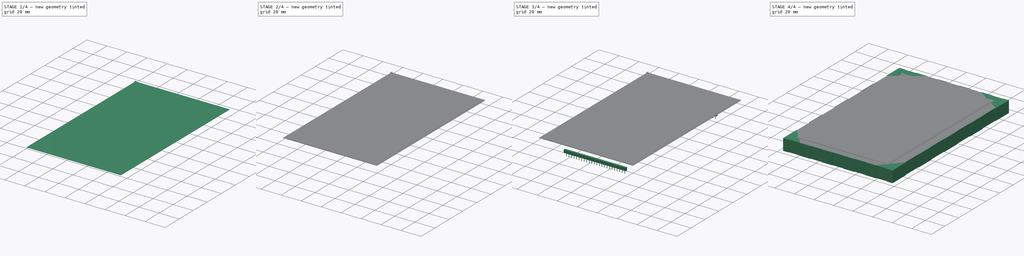
[diagram: build sequence overview — one tinted view per stage of 4, left to right]
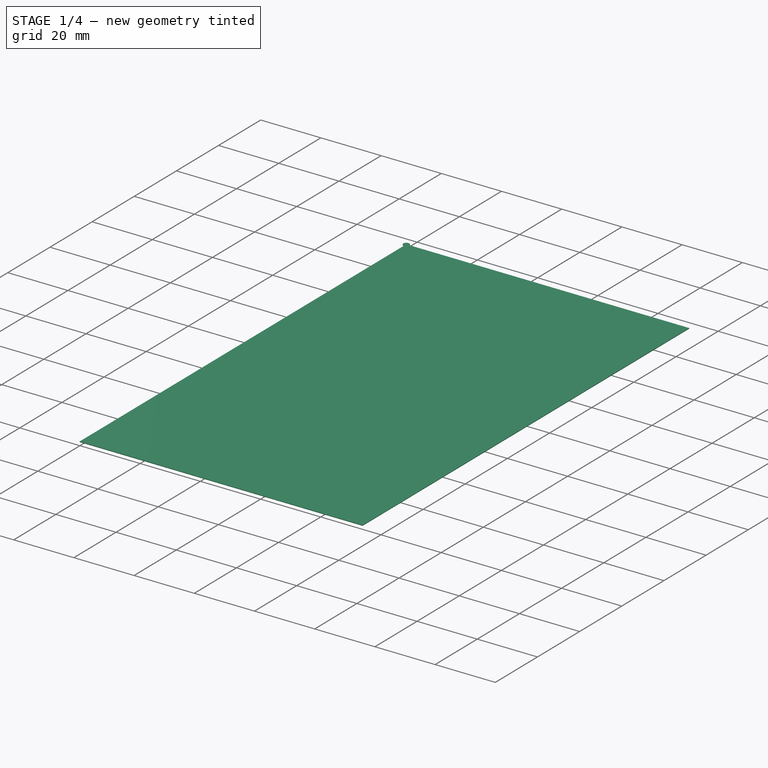
[diagram: stage 1 of 4 — iso view after this stage's code; geometry added in this stage tinted green]
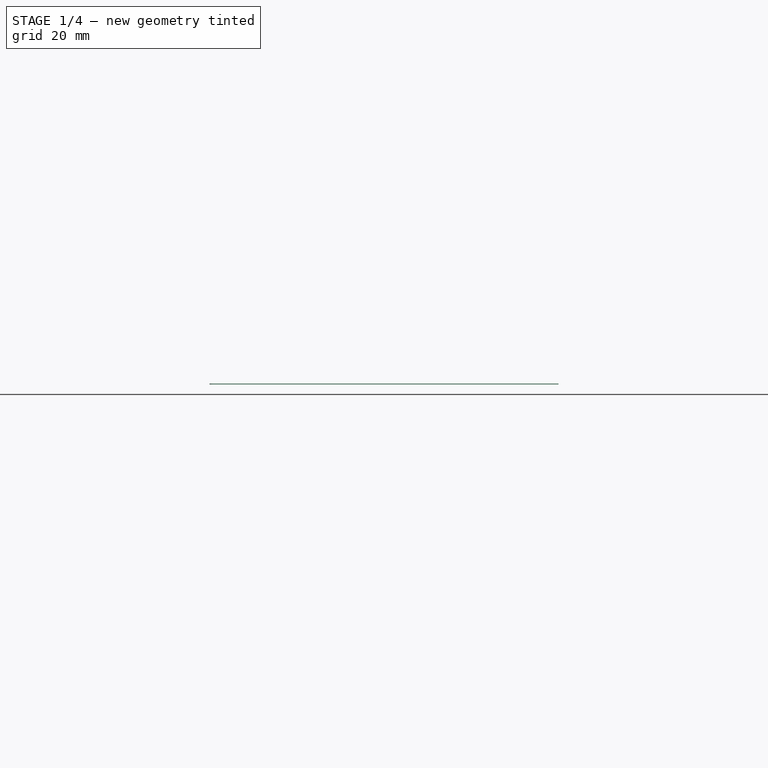
[diagram: stage 1 of 4 — front view after this stage's code; geometry added in this stage tinted green]
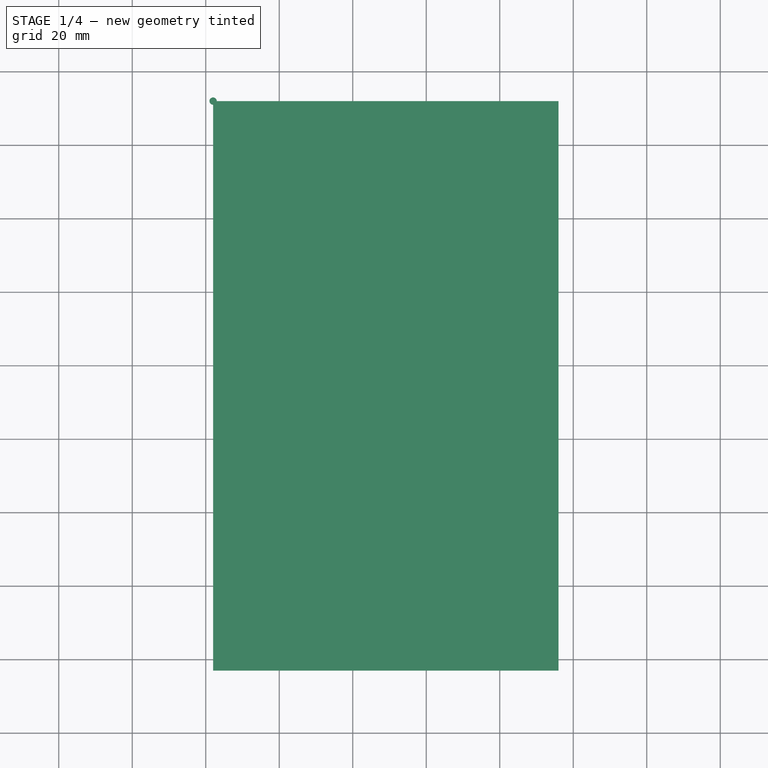
[diagram: stage 1 of 4 — top view after this stage's code; geometry added in this stage tinted green]
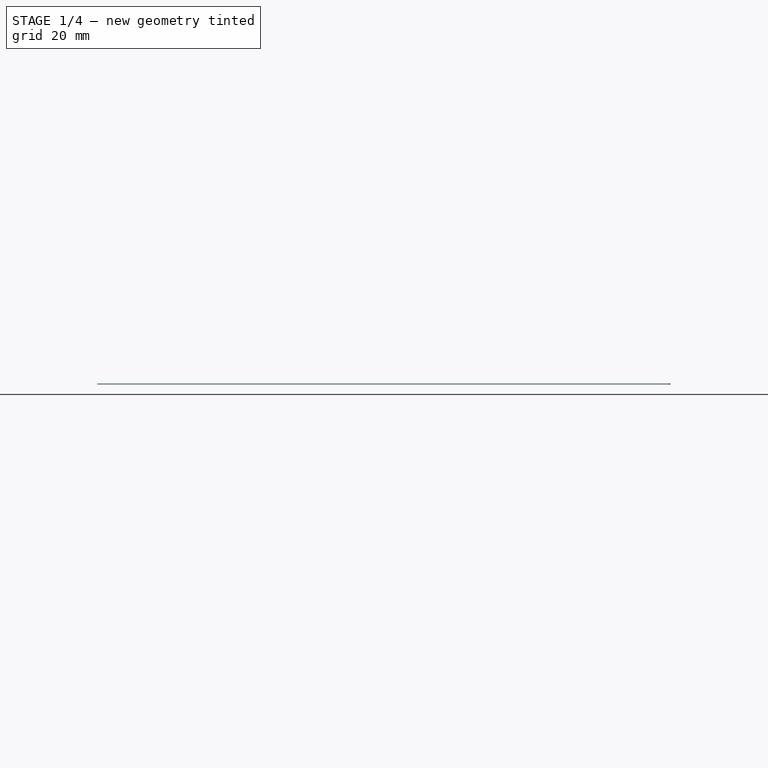
[diagram: stage 1 of 4 — right view after this stage's code; geometry added in this stage tinted green]
FCSTD DOCUMENT  (FreeCAD 0.17R11223 (Git))
Label: EA_eDIPTFT70-XXX_4
License: All rights reserved
LicenseURL: http://en.wikipedia.org/wiki/All_rights_reserved
objects: Part::Box×5, Sketcher::SketchObject×1, PartDesign::Pad×1, PartDesign::Body×1, Part::Fillet×1, Part::FeaturePython×1, Part::Cylinder×1, Part::MultiFuse×1
note: 13 computed .brp shape members not serialized (recipe doc carries the construction recipe); baked Part::Feature solids carry a one-line shape summary decoded from their .brp

FEATURE [Part::Box] Box003  label="DisplayBase"
  AttacherType = Attacher::AttachEngine3D
  Height = 0.2
  Length = 94
  Placement = pos=(-18,-143,13.9) rot=(0,0,1;0rad)
  Width = 155
FEATURE [Part::Cylinder] Cylinder
  Angle = 360
  AttacherType = Attacher::AttachEngine3D
  Height = 0.2
  Placement = pos=(-18,12,13.9) rot=(0,0,1;0rad)
  Radius = 1
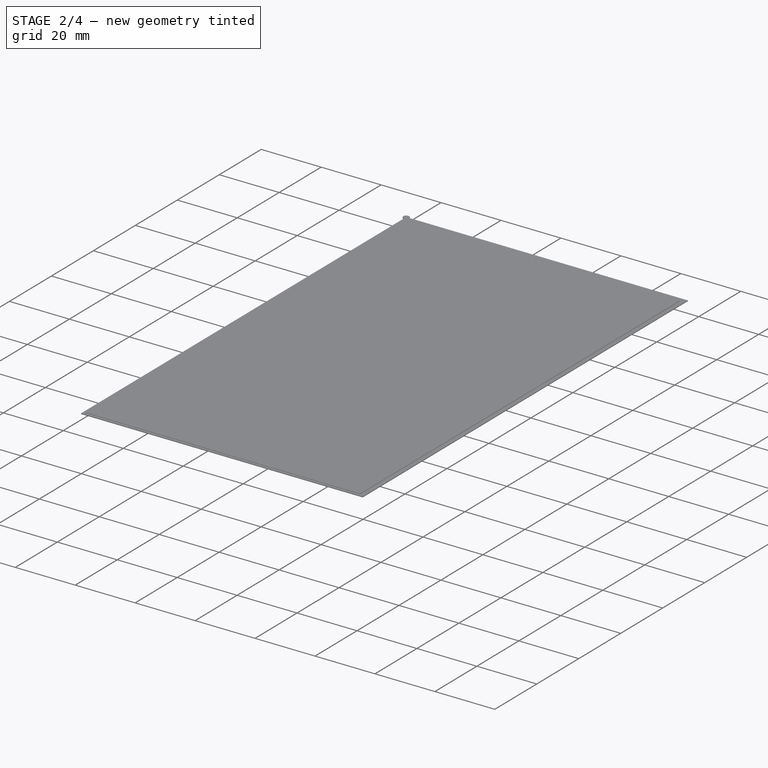
[diagram: stage 2 of 4 — iso view after this stage's code; geometry added in this stage tinted green]
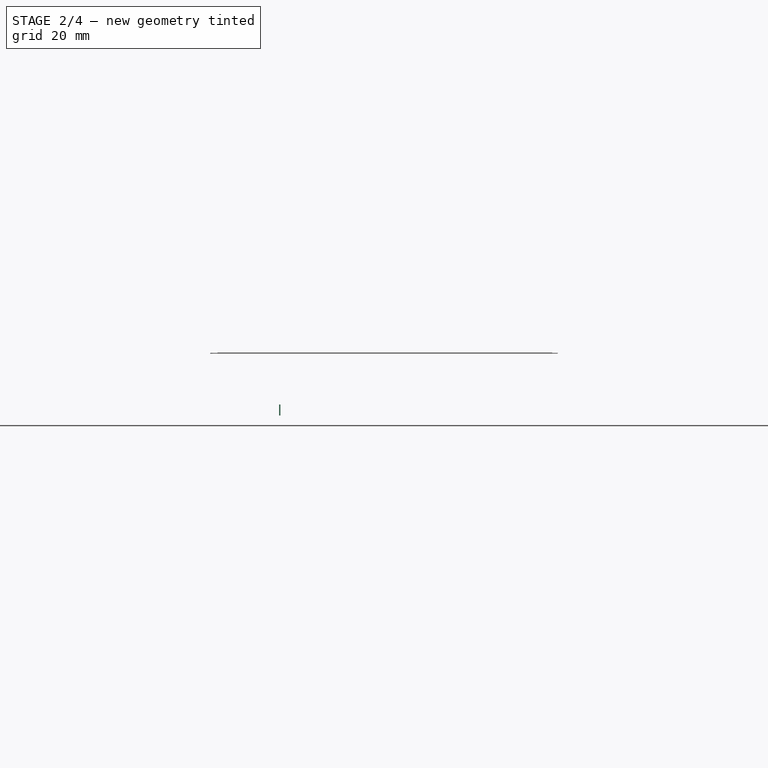
[diagram: stage 2 of 4 — front view after this stage's code; geometry added in this stage tinted green]
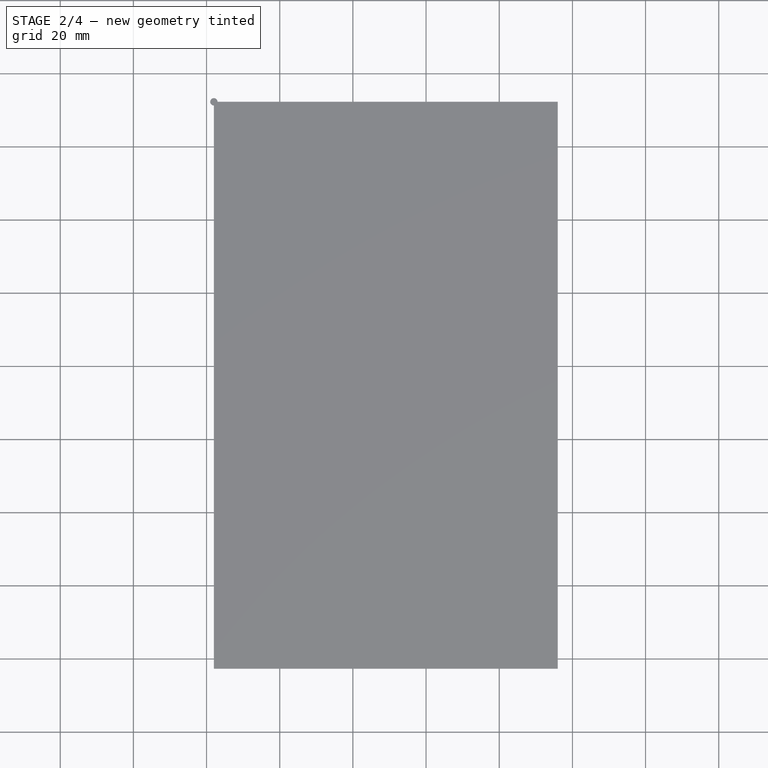
[diagram: stage 2 of 4 — top view after this stage's code; geometry added in this stage tinted green]
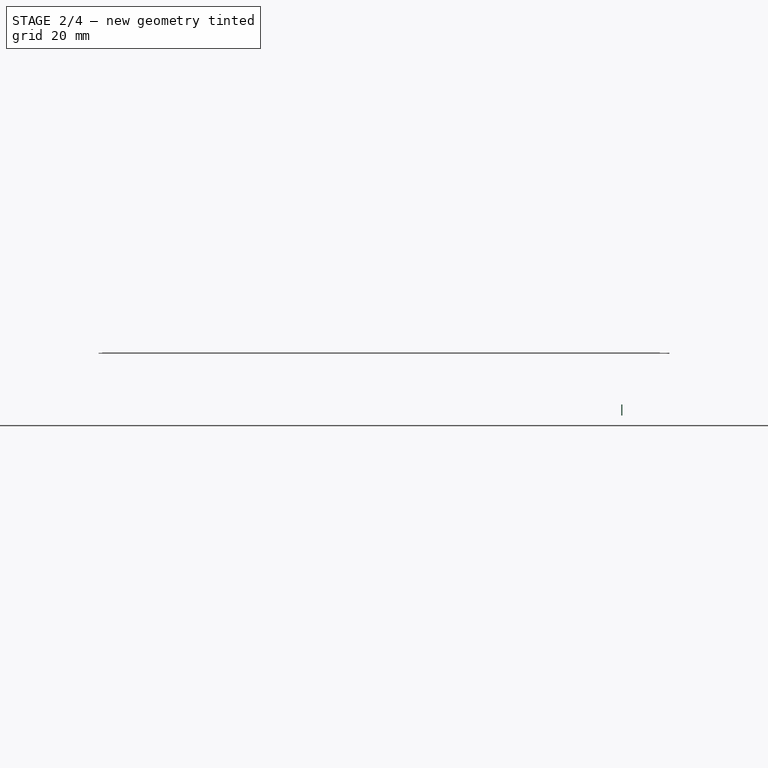
[diagram: stage 2 of 4 — right view after this stage's code; geometry added in this stage tinted green]
FEATURE [Part::Box] Box002  label="Pin"
  AttacherType = Attacher::AttachEngine3D
  Height = 3
  Length = 0.32
  Placement = pos=(-0.16,-0.16,-3) rot=(0,0,1;0rad)
  Width = 0.32
FEATURE [Part::Box] Box004  label="Display"
  AttacherType = Attacher::AttachEngine3D
  Height = 0.2
  Length = 91.44
  Placement = pos=(-17,-142,14) rot=(0,0,1;0rad)
  Width = 152.4
FEATURE [Part::MultiFuse] Fusion
  Shapes = -> [Box003,Cylinder]
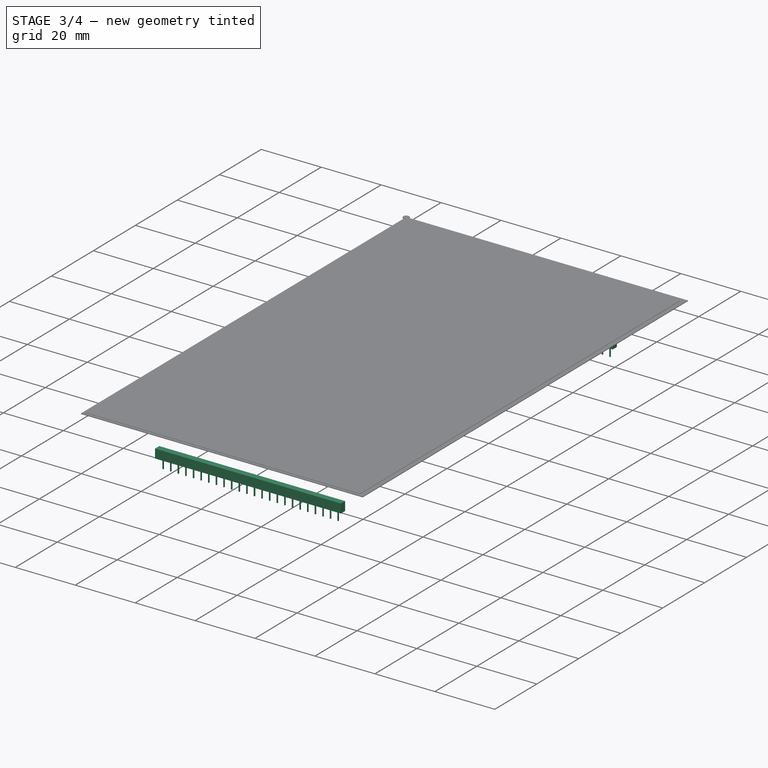
[diagram: stage 3 of 4 — iso view after this stage's code; geometry added in this stage tinted green]
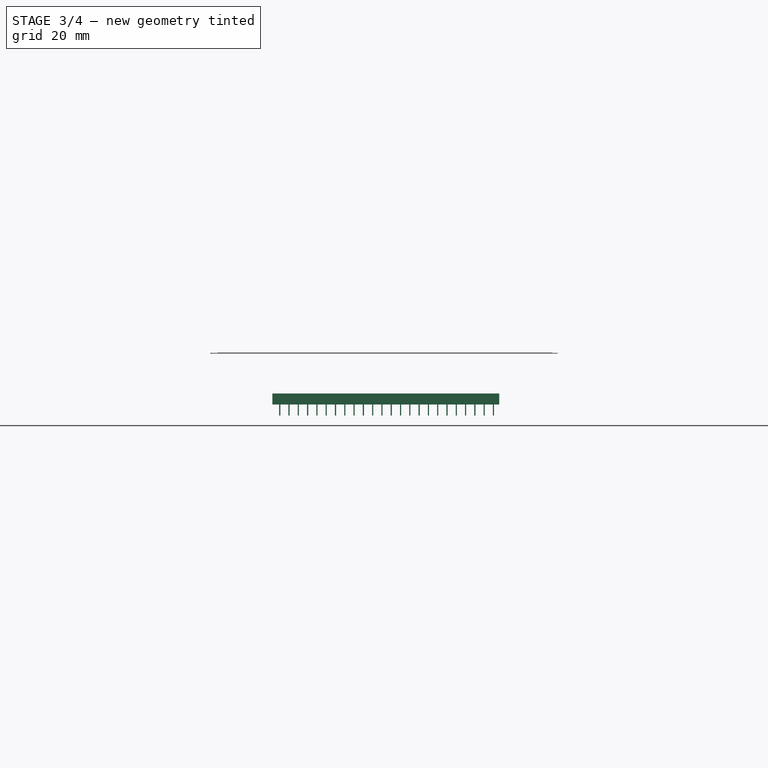
[diagram: stage 3 of 4 — front view after this stage's code; geometry added in this stage tinted green]
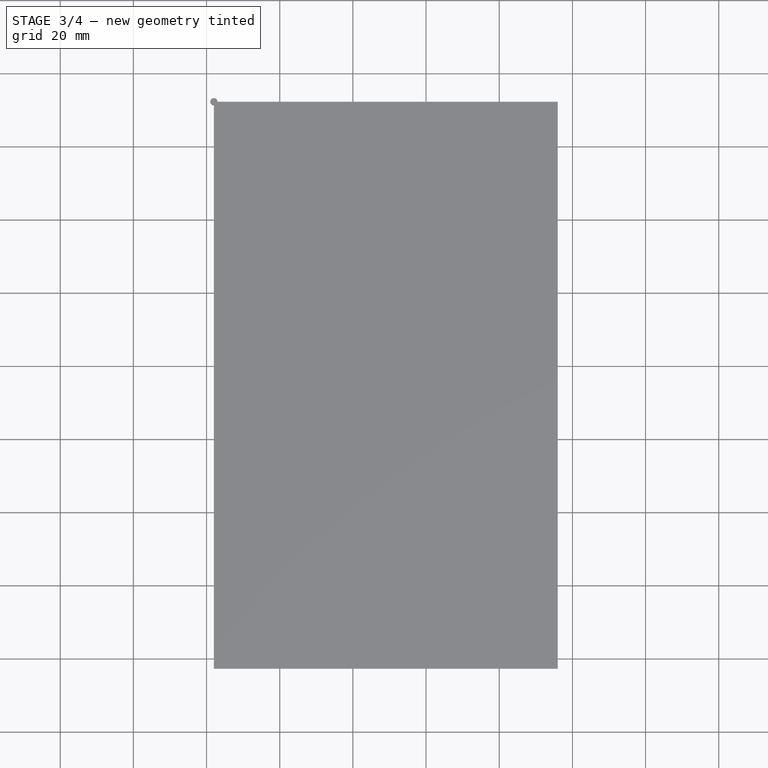
[diagram: stage 3 of 4 — top view after this stage's code; geometry added in this stage tinted green]
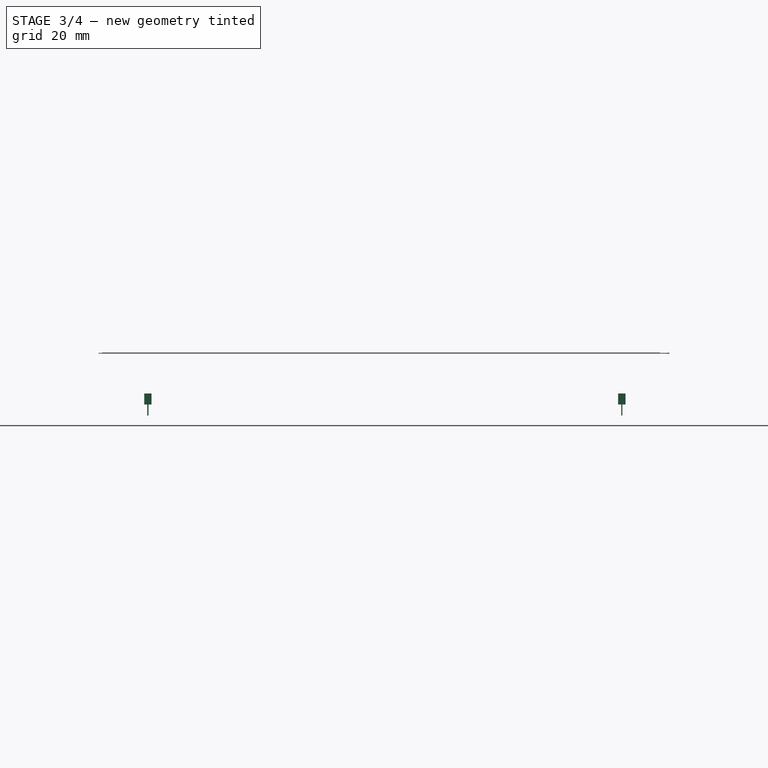
[diagram: stage 3 of 4 — right view after this stage's code; geometry added in this stage tinted green]
FEATURE [Part::Box] Box  label="Kub"
  AttacherType = Attacher::AttachEngine3D
  Height = 3
  Length = 62
  Placement = pos=(-2,-1,0) rot=(0,0,1;0rad)
  Width = 2
FEATURE [Part::Box] Box001  label="Kub001"
  AttacherType = Attacher::AttachEngine3D
  Height = 3
  Length = 62
  Placement = pos=(-2,-130.54,0) rot=(0,0,1;0rad)
  Width = 2
FEATURE [Part::FeaturePython] Array  label="Pins"  # Draft array (typed FeaturePython)
  Angle = 360
  ArrayType = 0
  Axis = (0,0,1)
  Base = -> Box002
  Center = (0,0,0)
  Fuse = false
  IntervalAxis = (0,0,0)
  IntervalX = (2.54,0,0)
  IntervalY = (0,-129.54,0)
  IntervalZ = (0,0,0)
  NumberPolar = 1
  NumberX = 24
  NumberY = 2
  NumberZ = 1
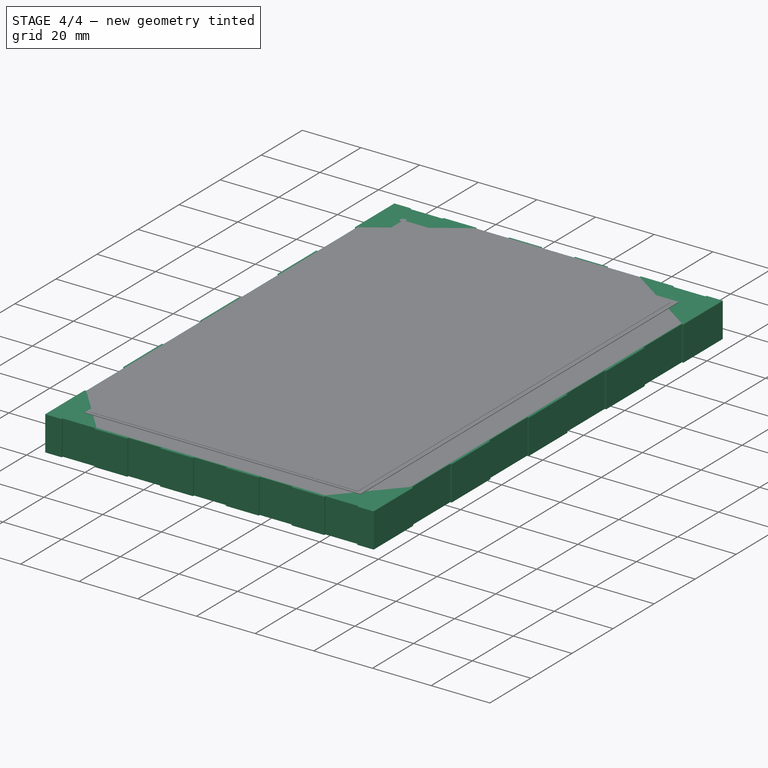
[diagram: stage 4 of 4 — iso view after this stage's code; geometry added in this stage tinted green]
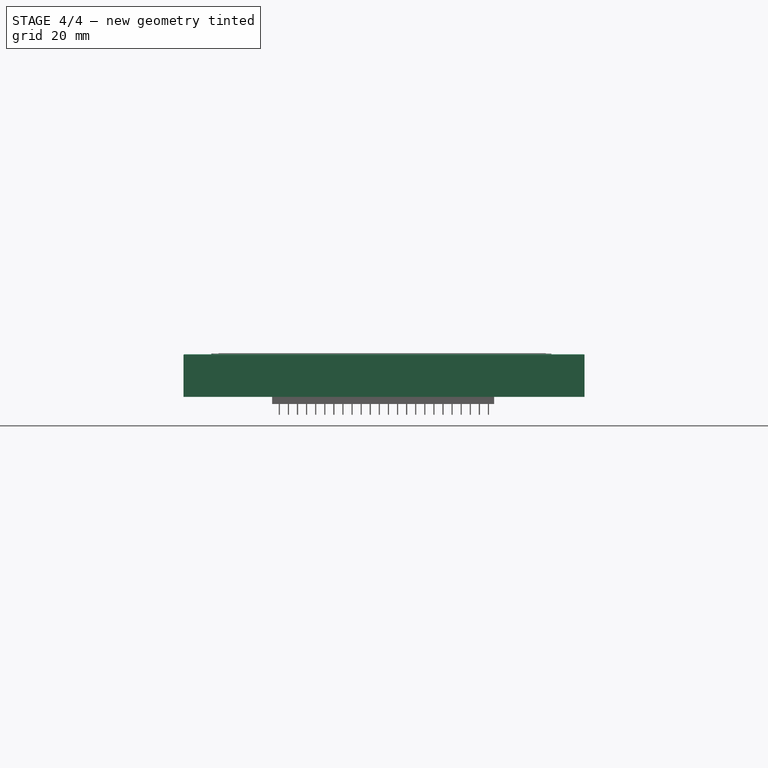
[diagram: stage 4 of 4 — front view after this stage's code; geometry added in this stage tinted green]
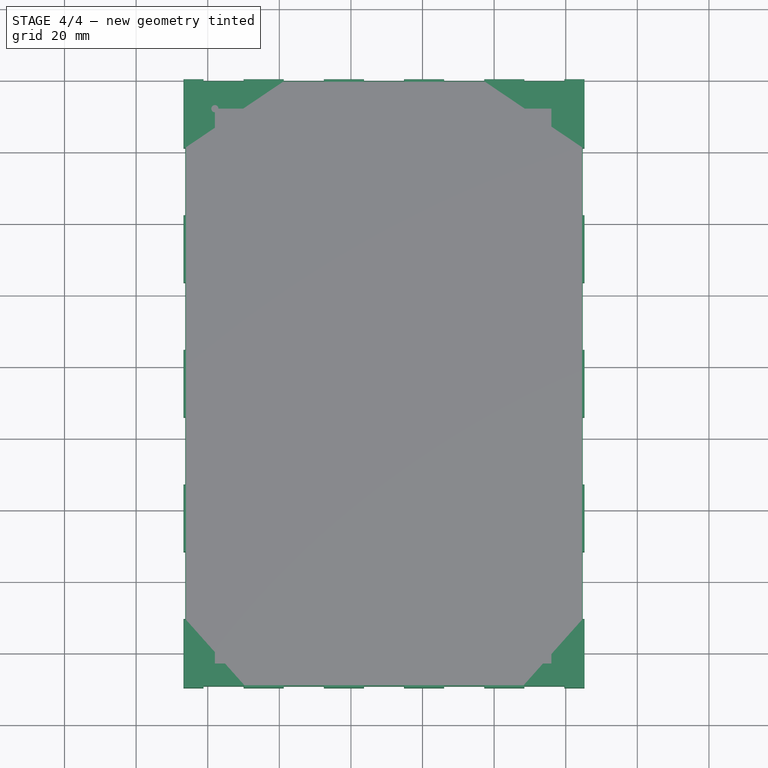
[diagram: stage 4 of 4 — top view after this stage's code; geometry added in this stage tinted green]
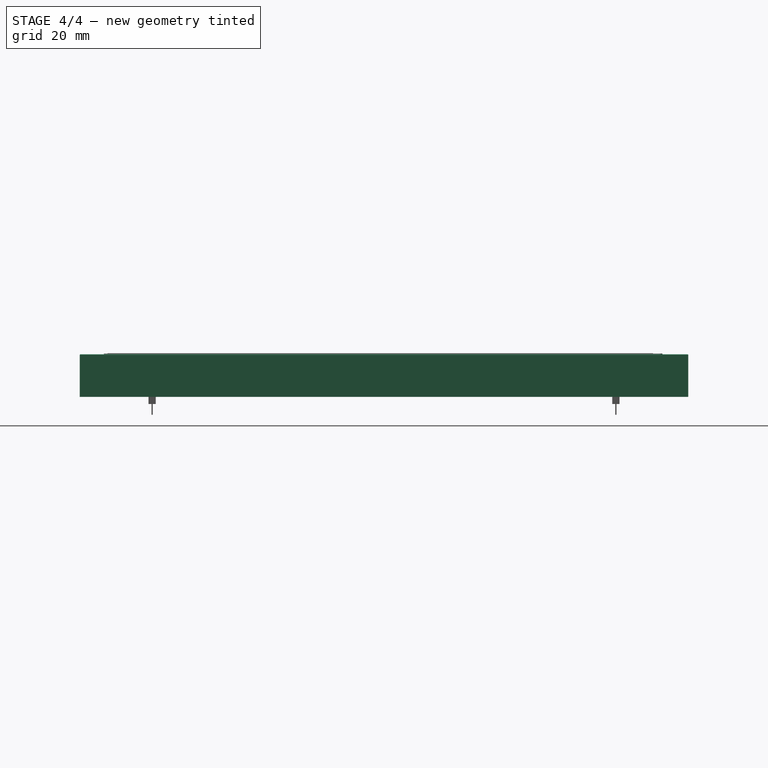
[diagram: stage 4 of 4 — right view after this stage's code; geometry added in this stage tinted green]
FEATURE [Sketcher::SketchObject] Sketch
  MapMode = 5
  Support = -> [XY_Plane]
  sketch-geometry (76):
    g0: LineSegment StartX=-21.16 StartY=20.23 StartZ=0 EndX=-21.16 EndY=19.73 EndZ=0
    g1: LineSegment StartX=-21.16 StartY=19.73 StartZ=0 EndX=-9.96 EndY=19.73 EndZ=0
    g2: LineSegment StartX=-9.96 StartY=19.73 StartZ=0 EndX=-9.96 EndY=20.23 EndZ=0
    g3: LineSegment StartX=-9.96 StartY=20.23 StartZ=0 EndX=1.24 EndY=20.23 EndZ=0
    g4: LineSegment StartX=1.24 StartY=20.23 StartZ=0 EndX=1.24 EndY=19.73 EndZ=0
    g5: LineSegment StartX=1.24 StartY=19.73 StartZ=0 EndX=12.44 EndY=19.73 EndZ=0
    g6: LineSegment StartX=12.44 StartY=19.73 StartZ=0 EndX=12.44 EndY=20.23 EndZ=0
    g7: LineSegment StartX=12.44 StartY=20.23 StartZ=0 EndX=23.64 EndY=20.23 EndZ=0
    g8: LineSegment StartX=23.64 StartY=20.23 StartZ=0 EndX=23.64 EndY=19.73 EndZ=0
    g9: LineSegment StartX=23.64 StartY=19.73 StartZ=0 EndX=34.84 EndY=19.73 EndZ=0
    g10: LineSegment StartX=34.84 StartY=19.73 StartZ=0 EndX=34.84 EndY=20.23 EndZ=0
    g11: LineSegment StartX=34.84 StartY=20.23 StartZ=0 EndX=46.04 EndY=20.23 EndZ=0
    g12: LineSegment StartX=46.04 StartY=20.23 StartZ=0 EndX=46.04 EndY=19.73 EndZ=0
    g13: LineSegment StartX=46.04 StartY=19.73 StartZ=0 EndX=57.24 EndY=19.73 EndZ=0
    g14: LineSegment StartX=57.24 StartY=19.73 StartZ=0 EndX=57.24 EndY=20.23 EndZ=0
    g15: LineSegment StartX=57.24 StartY=20.23 StartZ=0 EndX=68.44 EndY=20.23 EndZ=0
    g16: LineSegment StartX=68.44 StartY=20.23 StartZ=0 EndX=68.44 EndY=19.73 EndZ=0
    g17: LineSegment StartX=68.44 StartY=19.73 StartZ=0 EndX=79.64 EndY=19.73 EndZ=0
    g18: LineSegment StartX=79.64 StartY=19.73 StartZ=0 EndX=79.64 EndY=20.23 EndZ=0
    g19: LineSegment StartX=79.64 StartY=20.23 StartZ=0 EndX=85.24 EndY=20.23 EndZ=0
    g20: LineSegment StartX=85.24 StartY=20.23 StartZ=0 EndX=85.24 EndY=1.03 EndZ=0
    g21: LineSegment StartX=85.24 StartY=1.03 StartZ=0 EndX=84.74 EndY=1.03 EndZ=0
    g22: LineSegment StartX=84.74 StartY=1.03 StartZ=0 EndX=84.74 EndY=-17.77 EndZ=0
    g23: LineSegment StartX=84.74 StartY=-17.77 StartZ=0 EndX=85.24 EndY=-17.77 EndZ=0
    g24: LineSegment StartX=85.24 StartY=-17.77 StartZ=0 EndX=85.24 EndY=-36.57 EndZ=0
    g25: LineSegment StartX=85.24 StartY=-36.57 StartZ=0 EndX=84.74 EndY=-36.57 EndZ=0
    g26: LineSegment StartX=84.74 StartY=-36.57 StartZ=0 EndX=84.74 EndY=-55.37 EndZ=0
    g27: LineSegment StartX=84.74 StartY=-55.37 StartZ=0 EndX=85.24 EndY=-55.37 EndZ=0
    g28: LineSegment StartX=85.24 StartY=-55.37 StartZ=0 EndX=85.24 EndY=-74.17 EndZ=0
    g29: LineSegment StartX=85.24 StartY=-74.17 StartZ=0 EndX=84.74 EndY=-74.17 EndZ=0
    g30: LineSegment StartX=84.74 StartY=-74.17 StartZ=0 EndX=84.74 EndY=-92.97 EndZ=0
    g31: LineSegment StartX=84.74 StartY=-92.97 StartZ=0 EndX=85.24 EndY=-92.97 EndZ=0
    g32: LineSegment StartX=85.24 StartY=-92.97 StartZ=0 EndX=85.24 EndY=-111.77 EndZ=0
    g33: LineSegment StartX=85.24 StartY=-111.77 StartZ=0 EndX=84.74 EndY=-111.77 EndZ=0
    g34: LineSegment StartX=84.74 StartY=-111.77 StartZ=0 EndX=84.74 EndY=-130.57 EndZ=0
    g35: LineSegment StartX=84.74 StartY=-130.57 StartZ=0 EndX=85.24 EndY=-130.57 EndZ=0
    g36: LineSegment StartX=85.24 StartY=-130.57 StartZ=0 EndX=85.24 EndY=-149.77 EndZ=0
    g37: LineSegment StartX=85.24 StartY=-149.77 StartZ=0 EndX=79.64 EndY=-149.77 EndZ=0
    g38: LineSegment StartX=79.64 StartY=-149.77 StartZ=0 EndX=79.64 EndY=-149.27 EndZ=0
    g39: LineSegment StartX=79.64 StartY=-149.27 StartZ=0 EndX=68.44 EndY=-149.27 EndZ=0
    g40: LineSegment StartX=68.44 StartY=-149.27 StartZ=0 EndX=68.44 EndY=-149.77 EndZ=0
    g41: LineSegment StartX=68.44 StartY=-149.77 StartZ=0 EndX=57.24 EndY=-149.77 EndZ=0
    g42: LineSegment StartX=57.24 StartY=-149.77 StartZ=0 EndX=57.24 EndY=-149.27 EndZ=0
    g43: LineSegment StartX=57.24 StartY=-149.27 StartZ=0 EndX=46.04 EndY=-149.27 EndZ=0
    g44: LineSegment StartX=46.04 StartY=-149.27 StartZ=0 EndX=46.04 EndY=-149.77 EndZ=0
    g45: LineSegment StartX=46.04 StartY=-149.77 StartZ=0 EndX=34.84 EndY=-149.77 EndZ=0
    g46: LineSegment StartX=34.84 StartY=-149.77 StartZ=0 EndX=34.84 EndY=-149.27 EndZ=0
    g47: LineSegment StartX=34.84 StartY=-149.27 StartZ=0 EndX=23.64 EndY=-149.27 EndZ=0
    g48: LineSegment StartX=23.64 StartY=-149.27 StartZ=0 EndX=23.64 EndY=-149.77 EndZ=0
    g49: LineSegment StartX=23.64 StartY=-149.77 StartZ=0 EndX=12.44 EndY=-149.77 EndZ=0
    g50: LineSegment StartX=12.44 StartY=-149.77 StartZ=0 EndX=12.44 EndY=-149.27 EndZ=0
    g51: LineSegment StartX=12.44 StartY=-149.27 StartZ=0 EndX=1.24 EndY=-149.27 EndZ=0
    g52: LineSegment StartX=1.24 StartY=-149.27 StartZ=0 EndX=1.24 EndY=-149.77 EndZ=0
    g53: LineSegment StartX=1.24 StartY=-149.77 StartZ=0 EndX=-9.96 EndY=-149.77 EndZ=0
    g54: LineSegment StartX=-9.96 StartY=-149.77 StartZ=0 EndX=-9.96 EndY=-149.27 EndZ=0
    g55: LineSegment StartX=-9.96 StartY=-149.27 StartZ=0 EndX=-21.16 EndY=-149.27 EndZ=0
    g56: LineSegment StartX=-21.16 StartY=-149.27 StartZ=0 EndX=-21.16 EndY=-149.77 EndZ=0
    g57: LineSegment StartX=-21.16 StartY=-149.77 StartZ=0 EndX=-26.76 EndY=-149.77 EndZ=0
    g58: LineSegment StartX=-26.76 StartY=-149.77 StartZ=0 EndX=-26.76 EndY=-130.57 EndZ=0
    g59: LineSegment StartX=-26.76 StartY=-130.57 StartZ=0 EndX=-26.26 EndY=-130.57 EndZ=0
    g60: LineSegment StartX=-26.26 StartY=-130.57 StartZ=0 EndX=-26.26 EndY=-111.77 EndZ=0
    g61: LineSegment StartX=-26.26 StartY=-111.77 StartZ=0 EndX=-26.76 EndY=-111.77 EndZ=0
    g62: LineSegment StartX=-26.76 StartY=-111.77 StartZ=0 EndX=-26.76 EndY=-92.97 EndZ=0
    g63: LineSegment StartX=-26.76 StartY=-92.97 StartZ=0 EndX=-26.26 EndY=-92.97 EndZ=0
    g64: LineSegment StartX=-26.26 StartY=-92.97 StartZ=0 EndX=-26.26 EndY=-74.17 EndZ=0
    g65: LineSegment StartX=-26.26 StartY=-74.17 StartZ=0 EndX=-26.76 EndY=-74.17 EndZ=0
    g66: LineSegment StartX=-26.76 StartY=-74.17 StartZ=0 EndX=-26.76 EndY=-55.37 EndZ=0
    g67: LineSegment StartX=-26.76 StartY=-55.37 StartZ=0 EndX=-26.26 EndY=-55.37 EndZ=0
    g68: LineSegment StartX=-26.26 StartY=-55.37 StartZ=0 EndX=-26.26 EndY=-36.57 EndZ=0
    g69: LineSegment StartX=-26.26 StartY=-36.57 StartZ=0 EndX=-26.76 EndY=-36.57 EndZ=0
    g70: LineSegment StartX=-26.76 StartY=-36.57 StartZ=0 EndX=-26.76 EndY=-17.77 EndZ=0
    g71: LineSegment StartX=-26.76 StartY=-17.77 StartZ=0 EndX=-26.26 EndY=-17.77 EndZ=0
    g72: LineSegment StartX=-26.26 StartY=-17.77 StartZ=0 EndX=-26.26 EndY=1.03 EndZ=0
    g73: LineSegment StartX=-26.26 StartY=1.03 StartZ=0 EndX=-26.76 EndY=1.03 EndZ=0
    g74: LineSegment StartX=-26.76 StartY=1.03 StartZ=0 EndX=-26.76 EndY=20.23 EndZ=0
    g75: LineSegment StartX=-21.16 StartY=20.23 StartZ=0 EndX=-26.76 EndY=20.23 EndZ=0
  constraints (228):
    c: Vertical(g0)
    c: Coincident(g0,g1)
    c: Horizontal(g1)
    c: Coincident(g1,g2)
    c: Vertical(g2)
    c: Coincident(g2,g3)
    c: Horizontal(g3)
    c: Coincident(g3,g4)
    c: Vertical(g4)
    c: Coincident(g4,g5)
    c: Horizontal(g5)
    c: Coincident(g5,g6)
    c: Vertical(g6)
    c: Coincident(g6,g7)
    c: Horizontal(g7)
    c: Coincident(g7,g8)
    c: Vertical(g8)
    c: Coincident(g8,g9)
    c: Horizontal(g9)
    c: Coincident(g9,g10)
    c: Vertical(g10)
    c: Coincident(g10,g11)
    c: Horizontal(g11)
    c: Coincident(g11,g12)
    c: Vertical(g12)
    c: Coincident(g12,g13)
    c: Horizontal(g13)
    c: Coincident(g13,g14)
    c: Vertical(g14)
    c: Coincident(g14,g15)
    c: Horizontal(g15)
    c: Coincident(g15,g16)
    c: Vertical(g16)
    c: Coincident(g16,g17)
    c: Horizontal(g17)
    c: Coincident(g17,g18)
    c: Coincident(g18,g19)
    c: Horizontal(g19)
    c: Coincident(g19,g20)
    c: Vertical(g20)
    c: Coincident(g20,g21)
    c: Horizontal(g21)
    c: Coincident(g21,g22)
    c: Vertical(g22)
    c: Coincident(g22,g23)
    c: Coincident(g23,g24)
    c: Vertical(g24)
    c: Coincident(g24,g25)
    c: Horizontal(g25)
    c: Coincident(g25,g26)
    c: Vertical(g26)
    c: Coincident(g26,g27)
    c: Horizontal(g27)
    c: Coincident(g27,g28)
    c: Vertical(g28)
    c: Coincident(g28,g29)
    c: Horizontal(g29)
    c: Coincident(g29,g30)
    c: Vertical(g30)
    c: Coincident(g30,g31)
    c: Horizontal(g31)
    c: Coincident(g31,g32)
    c: Vertical(g32)
    c: Coincident(g32,g33)
    c: Horizontal(g33)
    c: Coincident(g33,g34)
    c: Vertical(g34)
    c: Coincident(g34,g35)
    c: Horizontal(g35)
    c: Coincident(g35,g36)
    c: Vertical(g36)
    c: Coincident(g36,g37)
    c: Horizontal(g37)
    c: Coincident(g37,g38)
    c: Vertical(g38)
    c: Coincident(g38,g39)
    c: Horizontal(g39)
    c: Coincident(g39,g40)
    c: Vertical(g40)
    c: Coincident(g40,g41)
    c: Horizontal(g41)
    c: Coincident(g41,g42)
    c: Vertical(g42)
    c: Coincident(g42,g43)
    c: Horizontal(g43)
    c: Coincident(g43,g44)
    c: Vertical(g44)
    c: Coincident(g44,g45)
    c: Horizontal(g45)
    c: Coincident(g45,g46)
    c: Vertical(g46)
    c: Coincident(g46,g47)
    c: Horizontal(g47)
    c: Coincident(g47,g48)
    c: Vertical(g48)
    c: Coincident(g48,g49)
    c: Horizontal(g49)
    c: Coincident(g49,g50)
    c: Vertical(g50)
    c: Coincident(g50,g51)
    c: Horizontal(g51)
    c: Coincident(g51,g52)
    c: Vertical(g52)
    c: Coincident(g52,g53)
    c: Horizontal(g53)
    c: Coincident(g53,g54)
    c: Vertical(g54)
    c: Coincident(g54,g55)
    c: Horizontal(g55)
    c: Coincident(g55,g56)
    c: Vertical(g56)
    c: Coincident(g56,g57)
    c: Horizontal(g57)
    c: Coincident(g57,g58)
    c: Vertical(g58)
    c: Coincident(g58,g59)
    c: Horizontal(g59)
    c: Coincident(g59,g60)
    c: Vertical(g60)
    c: Coincident(g60,g61)
    c: Horizontal(g61)
    c: Coincident(g61,g62)
    c: Vertical(g62)
    c: Coincident(g62,g63)
    c: Horizontal(g63)
    c: Coincident(g63,g64)
    c: Vertical(g64)
    c: Coincident(g64,g65)
    c: Horizontal(g65)
    c: Coincident(g65,g66)
    c: Vertical(g66)
    c: Coincident(g66,g67)
    c: Horizontal(g67)
    c: Coincident(g67,g68)
    c: Vertical(g68)
    c: Coincident(g68,g69)
    c: Horizontal(g69)
    c: Coincident(g69,g70)
    c: Vertical(g70)
    c: Coincident(g70,g71)
    c: Horizontal(g71)
    c: Coincident(g71,g72)
    c: Vertical(g72)
    c: Coincident(g72,g73)
    c: Horizontal(g73)
    c: Coincident(g73,g74)
    c: Vertical(g74)
    c: DistanceY(g56,g56) = 0.5
    c: DistanceY(g54,g54) = 0.5
    c: DistanceY(g52,g52) = 0.5
    c: DistanceY(g50,g50) = 0.5
    c: DistanceY(g48,g48) = 0.5
    c: DistanceY(g46,g46) = 0.5
    c: DistanceY(g44,g44) = 0.5
    c: DistanceY(g42,g42) = 0.5
    c: DistanceY(g40,g40) = 0.5
    c: DistanceY(g38,g38) = 0.5
    c: DistanceY(g18,g18) = 0.5
    c: DistanceX(g18,g17) = 0
    c: DistanceY(g16,g16) = 0.5
    c: DistanceY(g14,g14) = 0.5
    c: DistanceY(g12,g12) = 0.5
    c: DistanceY(g10,g10) = 0.5
    c: DistanceY(g8,g8) = 0.5
    c: DistanceY(g6,g6) = 0.5
    c: DistanceY(g4,g4) = 0.5
    c: DistanceY(g2,g2) = 0.5
    c: DistanceY(g0,g0) = 0.5
    c: DistanceY(g36,g19) = 170
    c: DistanceX(g35,g35) = 0.5
    c: DistanceX(g33,g33) = 0.5
    c: DistanceX(g31,g31) = 0.5
    c: DistanceX(g29,g29) = 0.5
    c: DistanceX(g27,g27) = 0.5
    c: DistanceX(g25,g25) = 0.5
    c: DistanceX(g23,g23) = 0.5
    c: DistanceY(g22,g23) = 0
    c: DistanceX(g21,g21) = 0.5
    c: DistanceX(g59,g59) = 0.5
    c: DistanceX(g61,g61) = 0.5
    c: DistanceX(g63,g63) = 0.5
    c: DistanceX(g65,g65) = 0.5
    c: DistanceX(g67,g67) = 0.5
    c: DistanceX(g69,g69) = 0.5
    c: DistanceX(g71,g71) = 0.5
    c: DistanceX(g73,g73) = 0.5
    c: DistanceY(g22,g22) = 18.8
    c: DistanceY(g24,g24) = 18.8
    c: DistanceY(g26,g26) = 18.8
    c: DistanceY(g28,g28) = 18.8
    c: DistanceY(g30,g30) = 18.8
    c: DistanceY(g32,g32) = 18.8
    c: DistanceY(g34,g34) = 18.8
    c: DistanceY(g20,g20) = 19.2
    c: DistanceY(g60,g60) = 18.8
    c: DistanceY(g62,g62) = 18.8
    c: DistanceY(g64,g64) = 18.8
    c: DistanceY(g66,g66) = 18.8
    c: DistanceY(g68,g68) = 18.8
    c: DistanceY(g70,g70) = 18.8
    c: DistanceY(g72,g72) = 18.8
    c: DistanceY(g74,g74) = 19.2
    c: DistanceX(g55,g55) = 11.2
    c: DistanceX(g53,g53) = 11.2
    c: DistanceX(g51,g51) = 11.2
    c: DistanceX(g49,g49) = 11.2
    c: DistanceX(g47,g47) = 11.2
    c: DistanceX(g45,g45) = 11.2
    c: DistanceX(g43,g43) = 11.2
    c: DistanceX(g41,g41) = 11.2
    c: DistanceX(g39,g39) = 11.2
    c: DistanceX(g57,g36) = 112
    c: DistanceX(g57,g57) = 5.6
    c: Coincident(g0,g75)
    c: Coincident(g75,g74)
    c: Horizontal(g75)
    c: DistanceX(g75,g75) = 5.6
    c: DistanceX(g1,g1) = 11.2
    c: DistanceX(g3,g3) = 11.2
    c: DistanceX(g5,g5) = 11.2
    c: DistanceX(g7,g7) = 11.2
    c: DistanceX(g9,g9) = 11.2
    c: DistanceX(g11,g11) = 11.2
    c: DistanceX(g13,g13) = 11.2
    c: DistanceX(g15,g15) = 11.2
    c: DistanceX(g17,g17) = 11.2
    c: DistanceX(g74,g-1) = 26.76
    c: DistanceY(g-1,g74) = 20.23
FEATURE [PartDesign::Pad] Pad
  Length = 11.9
  Length2 = 100
  Profile = -> Sketch
  Type = 0
FEATURE [PartDesign::Body] Body
  Group = -> [Sketch,Pad]
  Origin = -> BodyOrigin
  Tip = -> Pad
FEATURE [Part::Fillet] Fillet
  Base = -> Pad
  Edges = 76 edges r=0.2: [Edge4,Edge7,Edge10,Edge13,Edge16,Edge19,Edge22,Edge25,Edge28,Edge31,Edge34,Edge37,Edge40,Edge43,Edge46,Edge49,Edge52,Edge55,Edge58,Edge61,Edge64,Edge67,Edge70,Edge73,Edge76,Edge79,Edge82,Edge85,Edge88,Edge91,Edge94,Edge97,Edge100,Edge103,Edge106,Edge109,Edge112,Edge115,Edge118,Edge121,Edge124,+35 more]
  Placement = pos=(0,0,2) rot=(0,0,1;0rad)
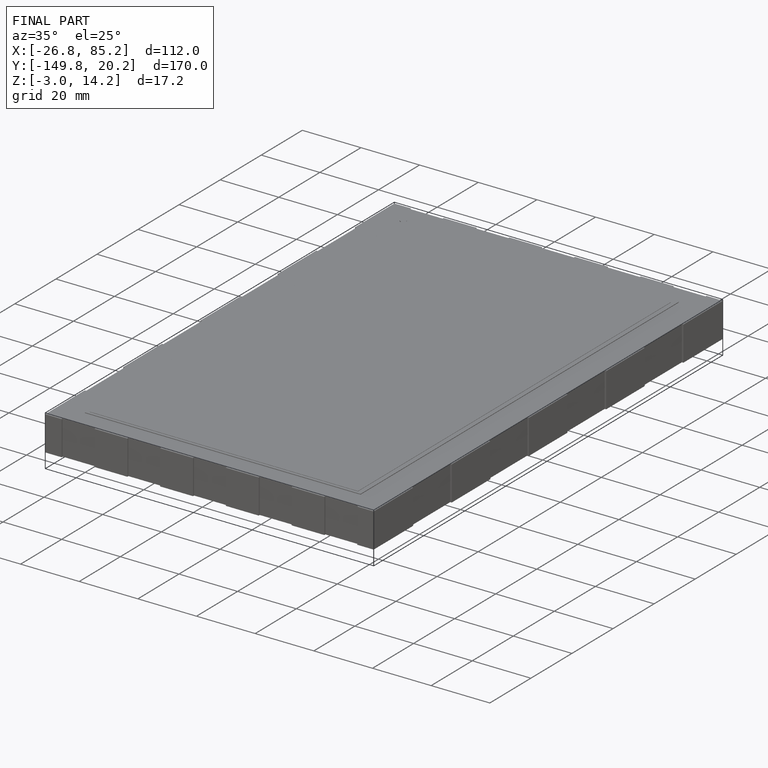
[diagram: finished part — iso view with bounding-box wireframe]
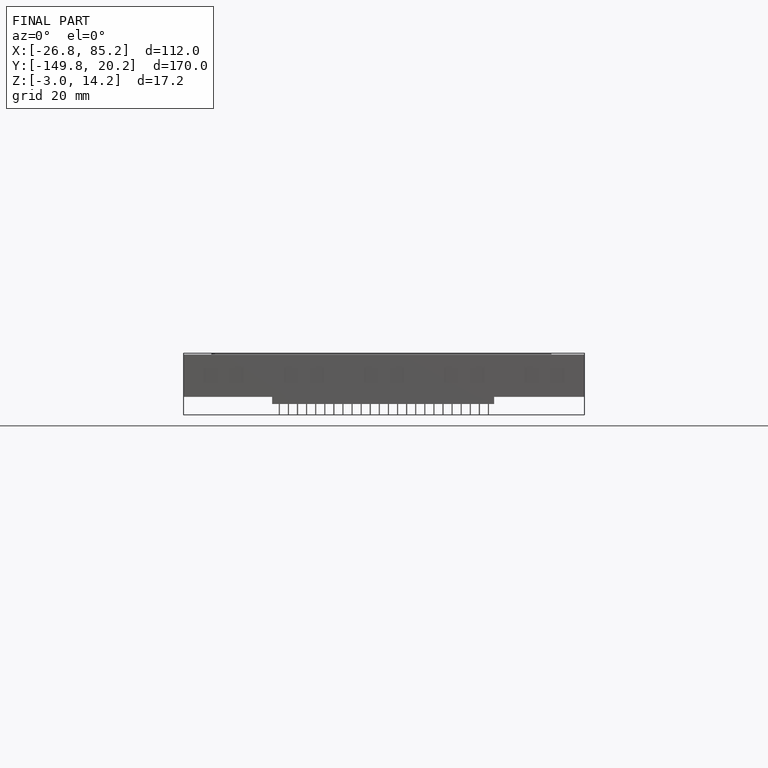
[diagram: finished part — front view with bounding-box wireframe]
